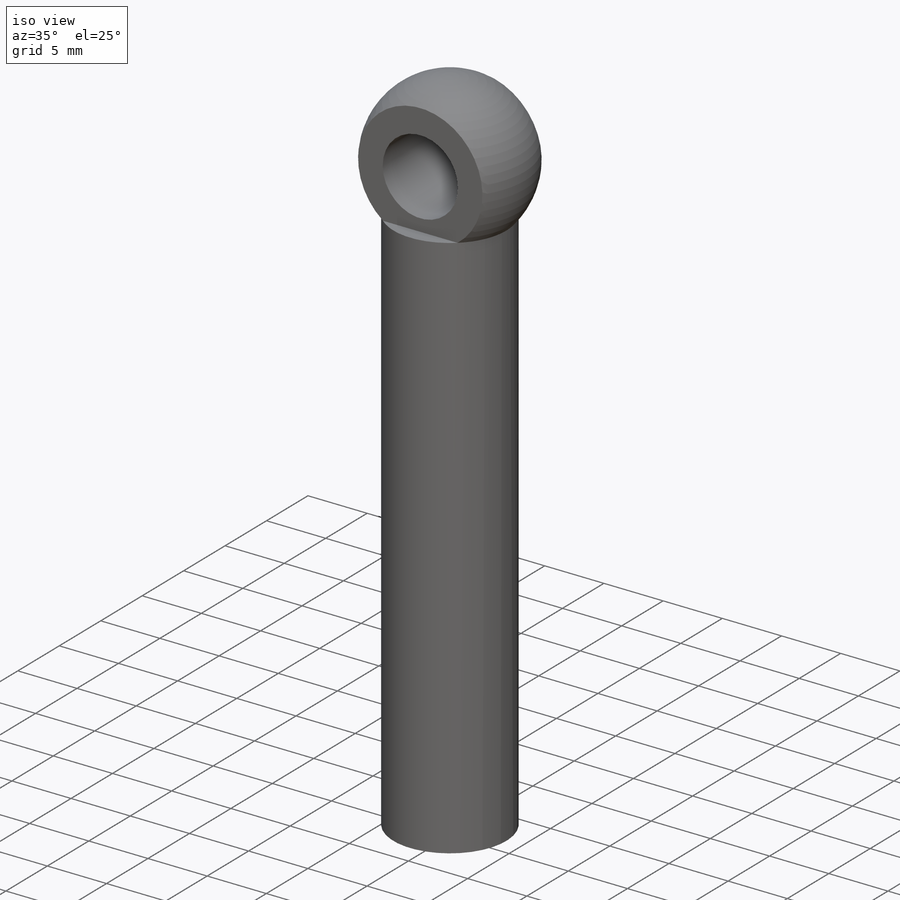
[diagram: iso view]
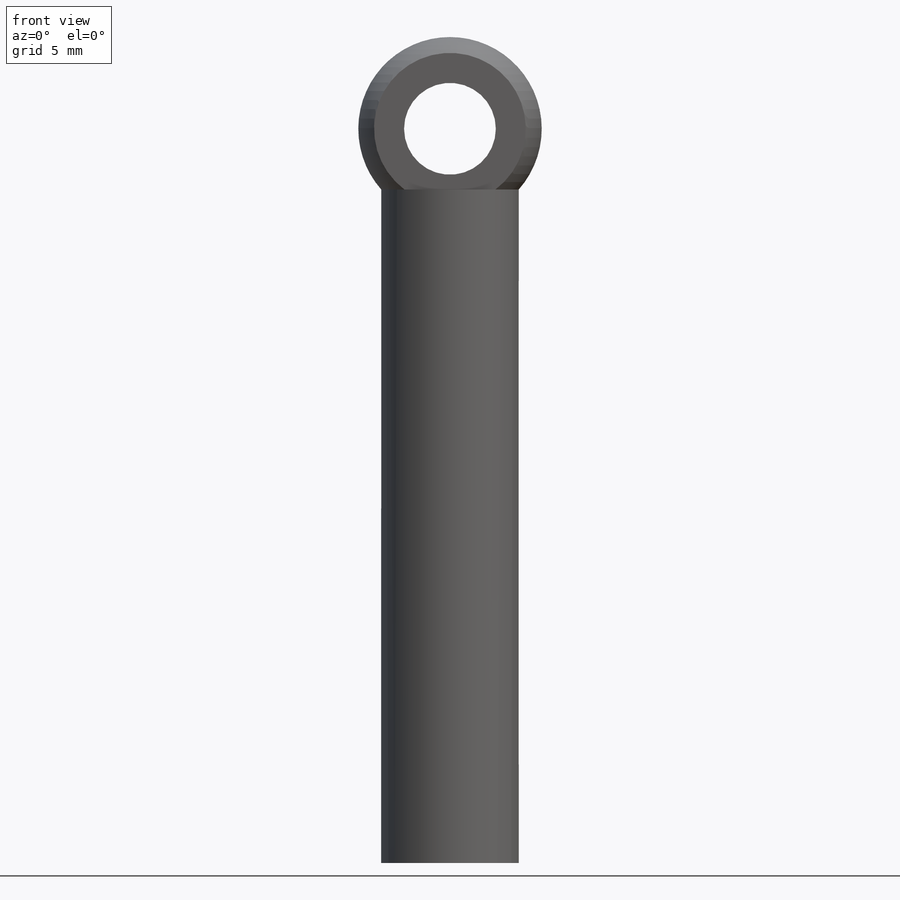
[diagram: front view]
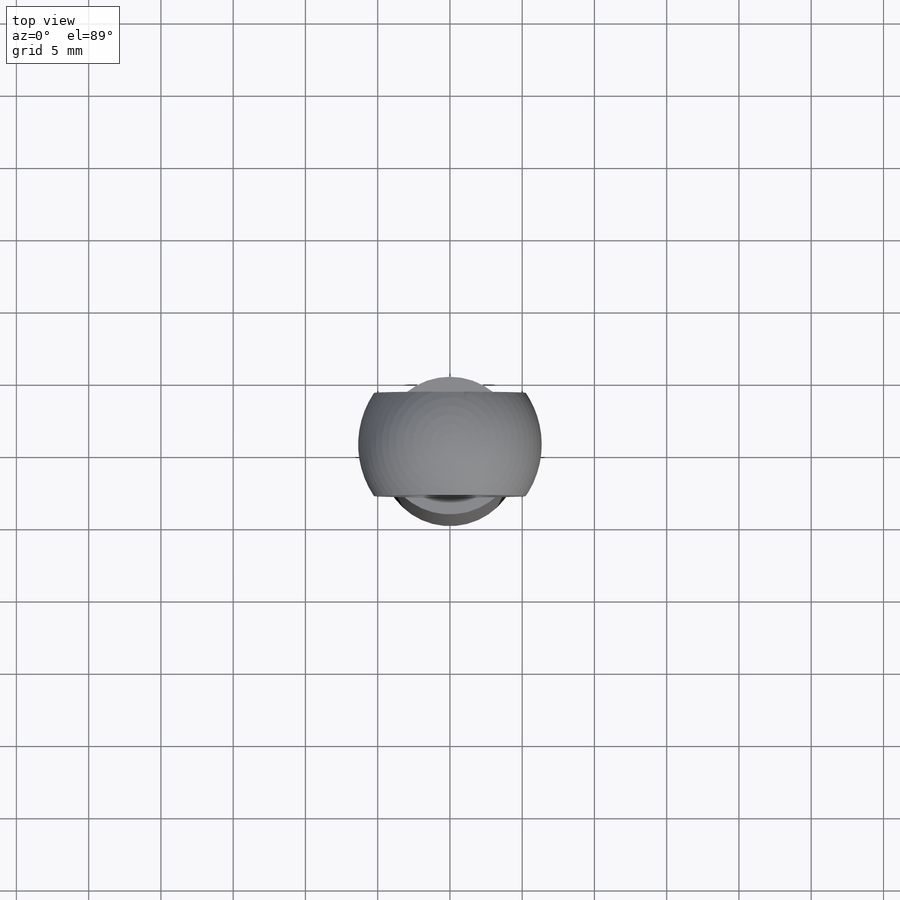
[diagram: top view]
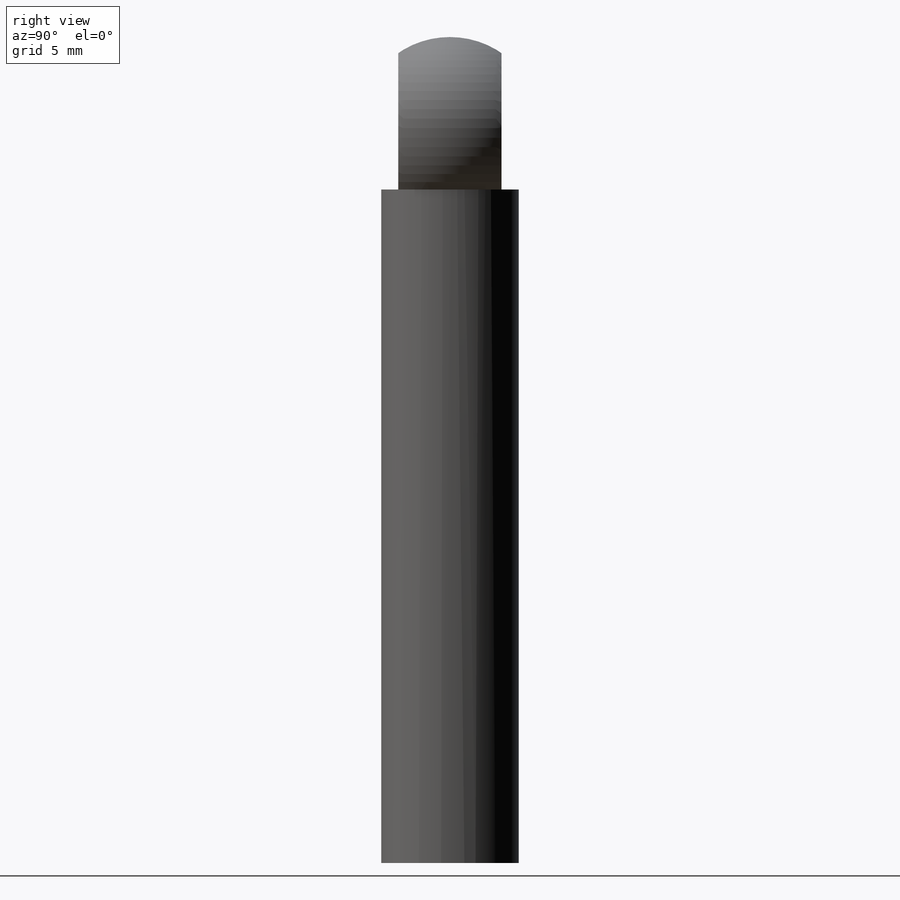
[diagram: right view]
SOLIDWORKS PART (.sldprt)
format: sldprt  version: not decoded by parser v0  size: 602,624 bytes
history: native  units: mm
features: sketch x7, revolve x2, cut_extrude x2, material x1, helix x1, sweep x1, boolean_combine x1, plane x1 (+13 scaffold rows collapsed)
feature tree (29):
  scaffold x13  (default folders/planes/origin — collapsed)
  material  "Plain Carbon Steel"
  sketch  "Sketch1"  dims[c1.Eye ID B=6.35mm c1.Eye OD C=12.7mm c1.D1=~19.189254mm c1.D2=63.5mm c1.Thread Dia=~10.700875mm c1.Thread Length A=19.05mm c1.Length E=50.8mm c2.Thread Dia=6.35mm c2.Eye Width D=~7.14375mm c2.D1=~0.396875mm c2.Shank Dia=9.525mm]
  revolve  "Revolve1"  Angle=360deg
  sketch  "Sketch8"
  helix  "Helix/Spiral1"  Pitch=20.32mm pitch=1.27mm
  sketch  "Sketch9"  dims[c1.D1=~10.805988mm c2.D1=~84.477959deg c2.D2=~0.15875mm c2.D3=0.635mm c2.D4=~0.839221mm c3.D4=~84.477959deg c3.D1=~2.348115mm c4.D1=60.0deg]
  sweep  "Cut-Sweep1"
  sketch  "Sketch4"
  revolve  "Revolve2"  Angle=360deg
  boolean_combine  "Combine1"
  plane  "Plane1"
  sketch  "Sketch6"  dims[D1=12.7mm]
  cut_extrude  "Cut-Extrude1"  [1 undecoded]
  sketch  "Sketch7"
  cut_extrude  "Cut-Extrude2"  [1 undecoded]
  sketch  "Sketch10"
decode coverage: 6 of 14 modeling features carry decoded parameters
note: ~ marks probable driven/reference dimensions
note: 2 parameter values undecoded
note: suppression state not decoded; provenance and decode notes live in map.json
